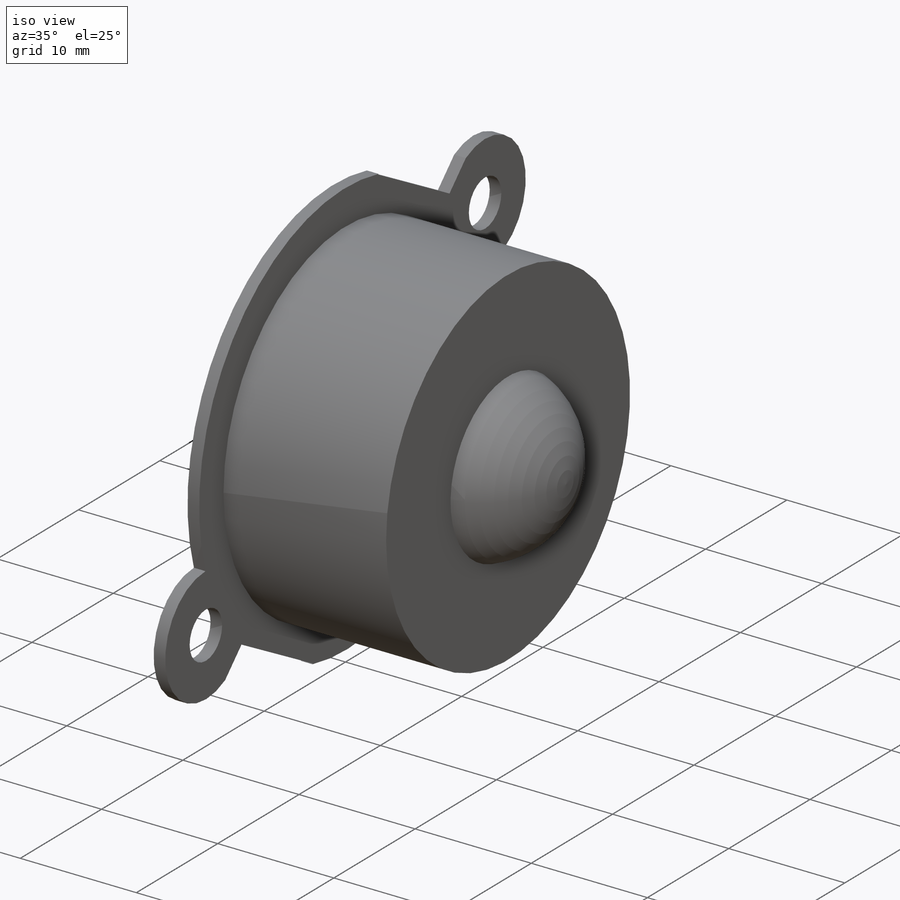
[diagram: iso view]
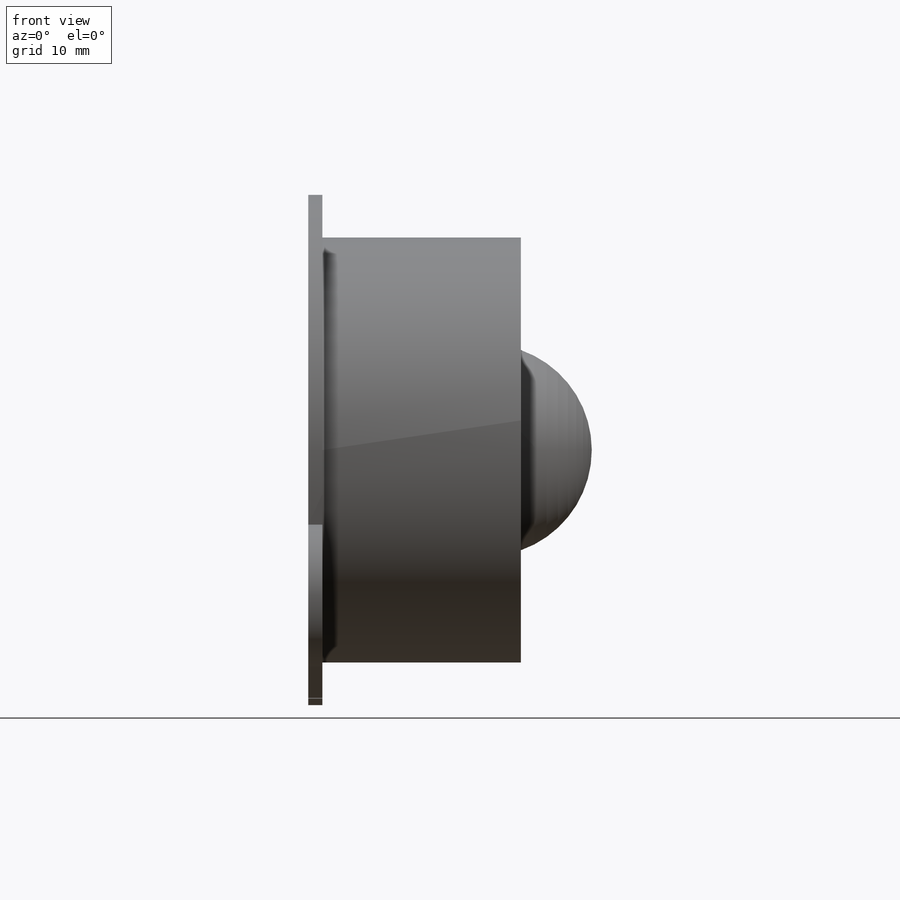
[diagram: front view]
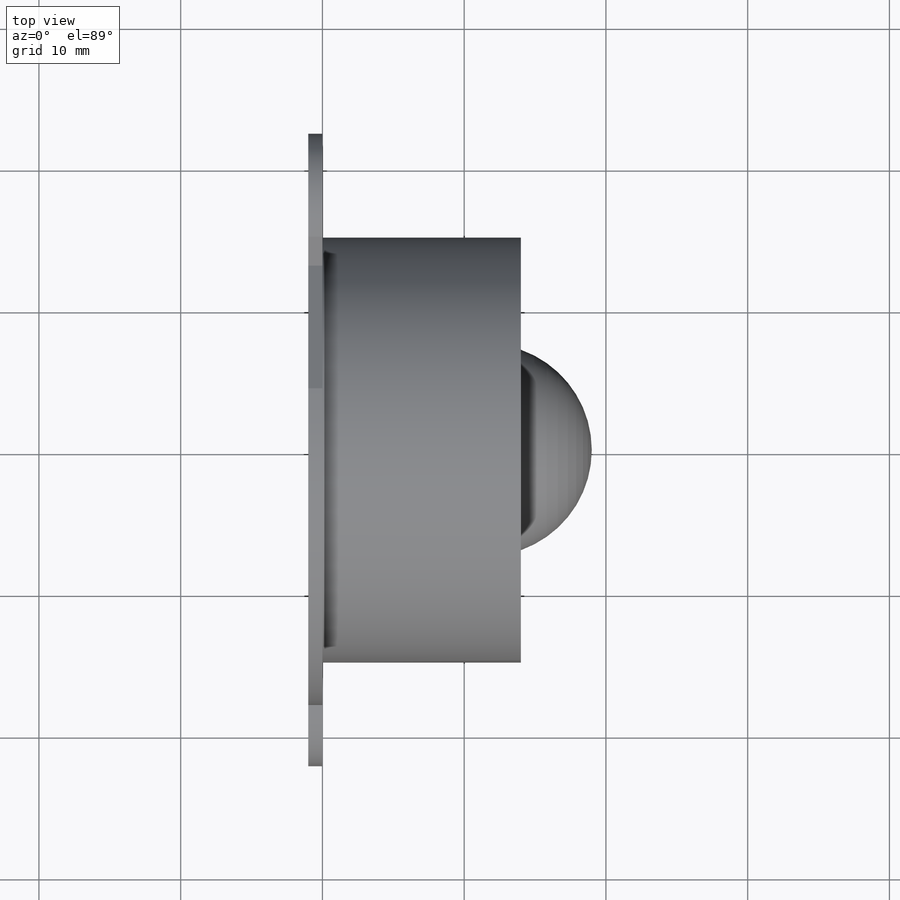
[diagram: top view]
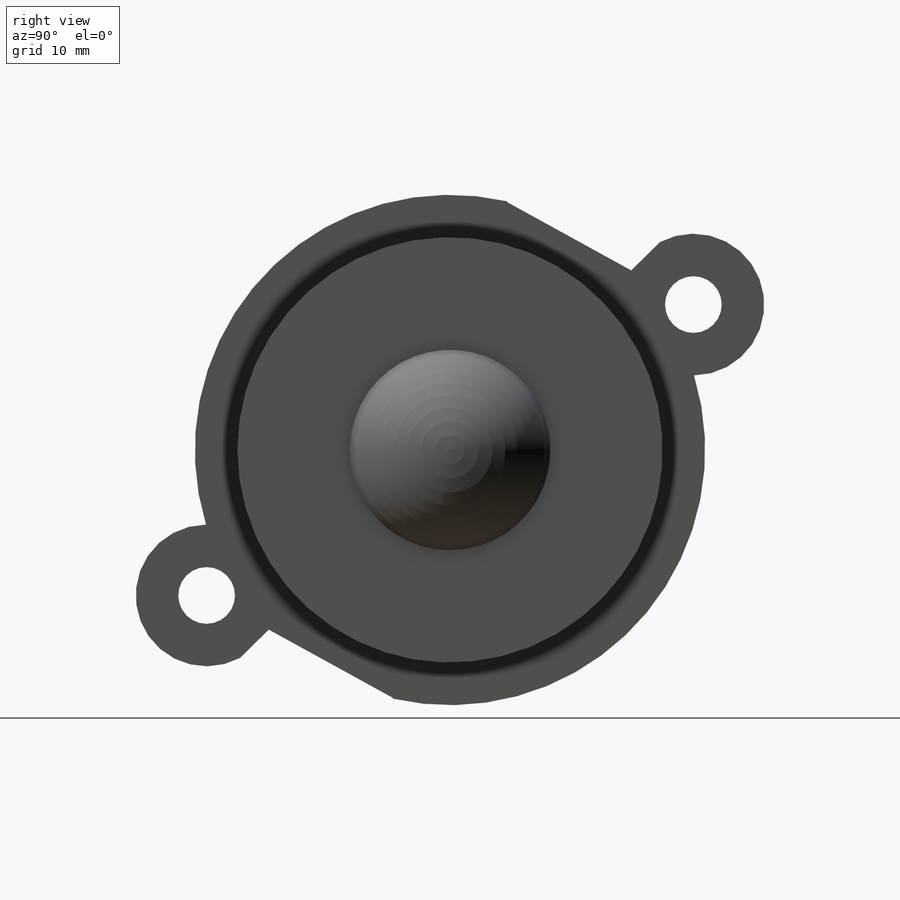
[diagram: right view]
SOLIDWORKS PART (.sldprt)
format: sldprt  version: not decoded by parser v0  size: 215,040 bytes
history: native  units: mm
features: plane x3, sketch x3, material x1, revolve x1, cut_extrude x1, pattern_circular x1 (+10 scaffold rows collapsed)
feature tree (20):
  scaffold x10  (default folders/planes/origin — collapsed)
  material  "Matériau <non spécifié>"
  plane  "Plan de face"
  plane  "Plan de dessus"
  plane  "Plan de droite"
  sketch  "Esquisse3"  dims[c1.D1=7.5mm c1.D2=2.5mm c1.D3=12.5mm c1.D4=25.0mm c1.D5=1.0mm c1.D6=0.0mm c2.D5=0.0mm c2.D2=2.5mm c2.D3=1.0mm c2.D4=25.0mm c3.D5=15.0mm c3.D6=12.5mm]
  revolve  "Révolution5"  Angle=360deg
  sketch  "Esquisse4"  dims[D1=4.0mm D2=20.0mm]
  cut_extrude  "Enlèv. mat.-Extru.1"  Depth=10mm
  pattern_circular  "Répétition circulaire1"  Count=2  [1 undecoded]
  sketch  "Esquisse5"  dims[c1.D1=18.0mm c1.D2=5.0mm c1.D3=5.0mm c2.D1=10.0mm c2.D5=10.0mm c2.D6=10.0mm c2.D7=5.0mm]
decode coverage: 6 of 6 modeling features carry decoded parameters
note: 1 parameter value undecoded
note: suppression state not decoded; provenance and decode notes live in map.json
